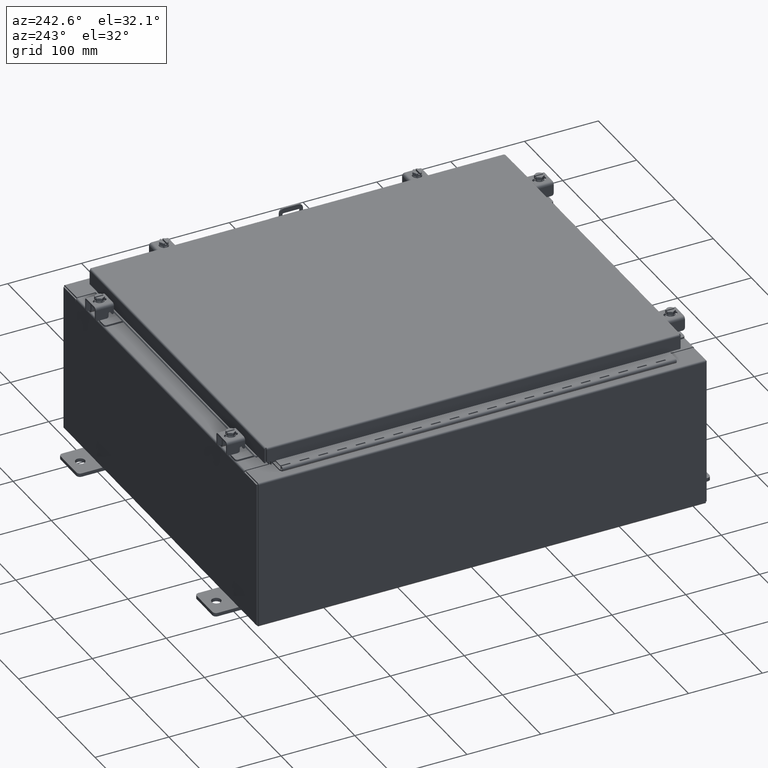
[diagram: clean part render]
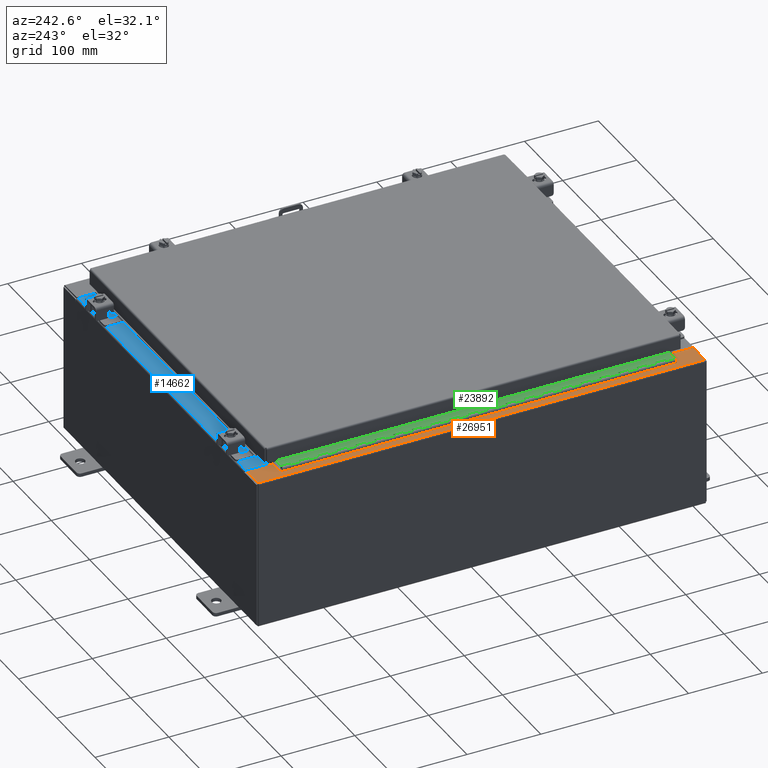
[diagram: same view with three faces highlighted in distinct colors, each labeled with its STEP entity id]
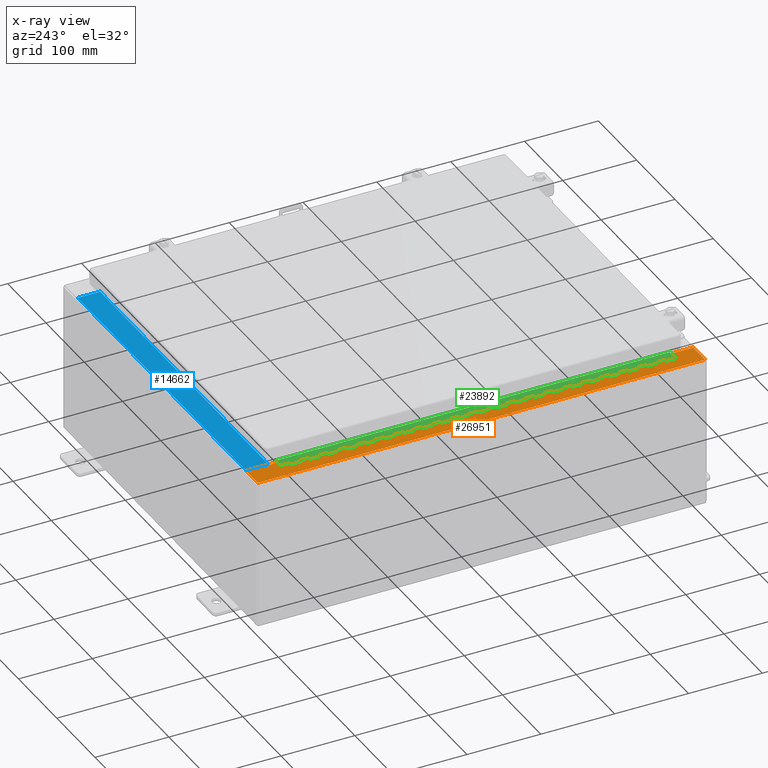
[diagram: x-ray of the same camera — body ghosted, the three highlighted faces saturated]
A machine part, auxiliary view with three faces highlighted in distinct colors.
The next image is the same camera in x-ray (body ghosted, the three faces saturated) — at least one of them is partly hidden behind the body in this view.
Their STEP definitions:

[orange] entity #26951 — the highlighted planar face has unit normal (0, 0, -1).
#151 = DIRECTION ( 'NONE',  ( -1.000000000000000000, -4.340572780399910900E-014, 0.0000000000000000000 ) ) ;
#219 = CARTESIAN_POINT ( 'NONE',  ( -8.712700000000030100, -10.59374999999999300, 7.925300000000008900 ) ) ;
#303 = EDGE_CURVE ( 'NONE', #32500, #23968, #8481, .T. ) ;
#952 = EDGE_CURVE ( 'NONE', #3105, #4582, #29604, .T. ) ;
#2425 = ORIENTED_EDGE ( 'NONE', *, *, #952, .F. ) ;
#2565 = CARTESIAN_POINT ( 'NONE',  ( -5.679009539018279500E-014, 0.0000000000000000000, 7.925300000000071100 ) ) ;
#2954 = VECTOR ( 'NONE', #151, 39.37007874015748100 ) ;
#3028 = ORIENTED_EDGE ( 'NONE', *, *, #5223, .T. ) ;
#3105 = VERTEX_POINT ( 'NONE', #27489 ) ;
#3360 = CARTESIAN_POINT ( 'NONE',  ( -8.712700000000030100, -10.59374999999999300, 7.925300000000008900 ) ) ;
#4303 = CARTESIAN_POINT ( 'NONE',  ( -8.712700000000030100, 10.59375000000000000, 7.925300000000008900 ) ) ;
#4396 = LINE ( 'NONE', #23399, #16999 ) ;
#4515 = CARTESIAN_POINT ( 'NONE',  ( -9.912300000000028500, 11.92530000000000000, 7.925300000000000000 ) ) ;
#4555 = CARTESIAN_POINT ( 'NONE',  ( -9.912300000000028500, -11.92529999999999600, 7.925300000000000000 ) ) ;
#4582 = VERTEX_POINT ( 'NONE', #9409 ) ;
#5153 = CARTESIAN_POINT ( 'NONE',  ( -8.750050000000030100, 10.59375000000000000, 7.925300000000008900 ) ) ;
#5223 = EDGE_CURVE ( 'NONE', #23455, #27421, #24686, .T. ) ;
#5695 = EDGE_CURVE ( 'NONE', #27644, #20898, #31306, .T. ) ;
#5756 = DIRECTION ( 'NONE',  ( -1.000000000000000000, 0.0000000000000000000, 0.0000000000000000000 ) ) ;
#5939 = EDGE_CURVE ( 'NONE', #4582, #15899, #30907, .T. ) ;
#6927 = LINE ( 'NONE', #7129, #19520 ) ;
#7129 = CARTESIAN_POINT ( 'NONE',  ( -8.750050000000030100, -10.63109999999999300, 7.925300000000008900 ) ) ;
#7682 = ORIENTED_EDGE ( 'NONE', *, *, #13631, .F. ) ;
#8481 = LINE ( 'NONE', #11727, #14400 ) ;
#8862 = LINE ( 'NONE', #17684, #21435 ) ;
#9409 = CARTESIAN_POINT ( 'NONE',  ( -8.750050000000030100, 10.63109999999999800, 7.925300000000008900 ) ) ;
#10283 = DIRECTION ( 'NONE',  ( -1.000000000000000000, 0.0000000000000000000, -7.132762385546378400E-015 ) ) ;
#11067 = VECTOR ( 'NONE', #12634, 39.37007874015748100 ) ;
#11358 = VECTOR ( 'NONE', #31641, 39.37007874015748100 ) ;
#11390 = VECTOR ( 'NONE', #22723, 39.37007874015748100 ) ;
#11727 = CARTESIAN_POINT ( 'NONE',  ( -5.679009539018279500E-014, 11.92530000000000000, 7.925300000000071100 ) ) ;
#11843 = CARTESIAN_POINT ( 'NONE',  ( -8.750050000000030100, 10.59375000000000000, 7.925300000000008900 ) ) ;
#12127 = VECTOR ( 'NONE', #5756, 39.37007874015748100 ) ;
#12634 = DIRECTION ( 'NONE',  ( 0.0000000000000000000, 1.000000000000000000, 0.0000000000000000000 ) ) ;
#12662 = DIRECTION ( 'NONE',  ( 7.132762385546378400E-015, 0.0000000000000000000, -1.000000000000000000 ) ) ;
#13631 = EDGE_CURVE ( 'NONE', #15899, #16061, #29800, .T. ) ;
#13700 = CARTESIAN_POINT ( 'NONE',  ( -8.750050000000030100, -10.59374999999999300, 7.925300000000008900 ) ) ;
#14014 = CARTESIAN_POINT ( 'NONE',  ( -8.750050000000030100, -10.61242499999999300, 7.925300000000008900 ) ) ;
#14400 = VECTOR ( 'NONE', #10283, 39.37007874015748100 ) ;
#14441 = DIRECTION ( 'NONE',  ( -7.132762385546378400E-015, -0.0000000000000000000, 1.000000000000000000 ) ) ;
#15563 = VERTEX_POINT ( 'NONE', #17667 ) ;
#15899 = VERTEX_POINT ( 'NONE', #11843 ) ;
#16061 = VERTEX_POINT ( 'NONE', #4303 ) ;
#16513 = DIRECTION ( 'NONE',  ( 1.000000000000000000, 0.0000000000000000000, 0.0000000000000000000 ) ) ;
#16722 = EDGE_LOOP ( 'NONE', ( #2425, #24261, #31211, #18901, #3028, #21713, #21182, #30889, #21476, #25572, #7682, #25193 ) ) ;
#16791 = CARTESIAN_POINT ( 'NONE',  ( -8.699700000000028400, 11.92530000000000000, 7.925300000000008900 ) ) ;
#16935 = VERTEX_POINT ( 'NONE', #20795 ) ;
#16999 = VECTOR ( 'NONE', #25892, 39.37007874015748100 ) ;
#17667 = CARTESIAN_POINT ( 'NONE',  ( -8.699700000000028400, -10.63109999999999300, 7.925300000000008900 ) ) ;
#17684 = CARTESIAN_POINT ( 'NONE',  ( -8.699700000000028400, 0.0000000000000000000, 7.925300000000008900 ) ) ;
#17731 = LINE ( 'NONE', #20201, #11067 ) ;
#17895 = VECTOR ( 'NONE', #29626, 39.37007874015748100 ) ;
#18850 = CIRCLE ( 'NONE', #26934, 0.01867499999999949400 ) ;
#18901 = ORIENTED_EDGE ( 'NONE', *, *, #24252, .F. ) ;
#19520 = VECTOR ( 'NONE', #29598, 39.37007874015748100 ) ;
#20201 = CARTESIAN_POINT ( 'NONE',  ( -8.699700000000028400, 0.0000000000000000000, 7.925300000000008900 ) ) ;
#20230 = DIRECTION ( 'NONE',  ( 0.0000000000000000000, 1.000000000000000000, 0.0000000000000000000 ) ) ;
#20795 = CARTESIAN_POINT ( 'NONE',  ( -8.750050000000030100, -10.63109999999999300, 7.925300000000008900 ) ) ;
#20898 = VERTEX_POINT ( 'NONE', #13700 ) ;
#21182 = ORIENTED_EDGE ( 'NONE', *, *, #21731, .F. ) ;
#21310 = AXIS2_PLACEMENT_3D ( 'NONE', #2565, #12662, #30176 ) ;
#21435 = VECTOR ( 'NONE', #20230, 39.37007874015748100 ) ;
#21476 = ORIENTED_EDGE ( 'NONE', *, *, #5695, .F. ) ;
#21713 = ORIENTED_EDGE ( 'NONE', *, *, #22397, .T. ) ;
#21731 = EDGE_CURVE ( 'NONE', #16935, #15563, #6927, .T. ) ;
#22266 = EDGE_CURVE ( 'NONE', #16061, #27644, #24544, .T. ) ;
#22397 = EDGE_CURVE ( 'NONE', #27421, #15563, #8862, .T. ) ;
#22723 = DIRECTION ( 'NONE',  ( 1.000000000000000000, 0.0000000000000000000, 0.0000000000000000000 ) ) ;
#23399 = CARTESIAN_POINT ( 'NONE',  ( -9.912300000000028500, 11.92530000000000000, 7.925300000000000000 ) ) ;
#23455 = VERTEX_POINT ( 'NONE', #4555 ) ;
#23968 = VERTEX_POINT ( 'NONE', #4515 ) ;
#24252 = EDGE_CURVE ( 'NONE', #23455, #23968, #4396, .T. ) ;
#24261 = ORIENTED_EDGE ( 'NONE', *, *, #24727, .T. ) ;
#24544 = LINE ( 'NONE', #29520, #17895 ) ;
#24686 = LINE ( 'NONE', #26614, #11358 ) ;
#24727 = EDGE_CURVE ( 'NONE', #3105, #32500, #17731, .T. ) ;
#24989 = AXIS2_PLACEMENT_3D ( 'NONE', #29413, #14441, #31934 ) ;
#25193 = ORIENTED_EDGE ( 'NONE', *, *, #5939, .F. ) ;
#25572 = ORIENTED_EDGE ( 'NONE', *, *, #22266, .F. ) ;
#25892 = DIRECTION ( 'NONE',  ( -0.0000000000000000000, 1.000000000000000000, -0.0000000000000000000 ) ) ;
#26614 = CARTESIAN_POINT ( 'NONE',  ( -3.552501257109376000E-014, -11.92529999999998000, 7.925300000000071100 ) ) ;
#26732 = EDGE_CURVE ( 'NONE', #20898, #16935, #18850, .T. ) ;
#26934 = AXIS2_PLACEMENT_3D ( 'NONE', #14014, #31489, #16513 ) ;
#26951 = ADVANCED_FACE ( 'NONE', ( #27664 ), #27642, .F. ) ;
#27421 = VERTEX_POINT ( 'NONE', #29587 ) ;
#27489 = CARTESIAN_POINT ( 'NONE',  ( -8.699700000000028400, 10.63110000000000200, 7.925300000000008900 ) ) ;
#27642 = PLANE ( 'NONE',  #21310 ) ;
#27644 = VERTEX_POINT ( 'NONE', #219 ) ;
#27664 = FACE_OUTER_BOUND ( 'NONE', #16722, .T. ) ;
#28869 = CARTESIAN_POINT ( 'NONE',  ( -8.699700000000028400, 10.63110000000000200, 7.925300000000008900 ) ) ;
#29413 = CARTESIAN_POINT ( 'NONE',  ( -8.750050000000030100, 10.61242500000000000, 7.925300000000008900 ) ) ;
#29520 = CARTESIAN_POINT ( 'NONE',  ( -8.712700000000030100, 10.59375000000000200, 7.925300000000008900 ) ) ;
#29587 = CARTESIAN_POINT ( 'NONE',  ( -8.699700000000028400, -11.92529999999999500, 7.925300000000008900 ) ) ;
#29598 = DIRECTION ( 'NONE',  ( 1.000000000000000000, 0.0000000000000000000, 0.0000000000000000000 ) ) ;
#29604 = LINE ( 'NONE', #28869, #2954 ) ;
#29626 = DIRECTION ( 'NONE',  ( -0.0000000000000000000, -1.000000000000000000, -0.0000000000000000000 ) ) ;
#29800 = LINE ( 'NONE', #5153, #11390 ) ;
#30176 = DIRECTION ( 'NONE',  ( -1.000000000000000000, 0.0000000000000000000, -7.132762385546378400E-015 ) ) ;
#30889 = ORIENTED_EDGE ( 'NONE', *, *, #26732, .F. ) ;
#30907 = CIRCLE ( 'NONE', #24989, 0.01867499999999949400 ) ;
#31211 = ORIENTED_EDGE ( 'NONE', *, *, #303, .T. ) ;
#31306 = LINE ( 'NONE', #3360, #12127 ) ;
#31489 = DIRECTION ( 'NONE',  ( -7.132762385546378400E-015, -0.0000000000000000000, 1.000000000000000000 ) ) ;
#31641 = DIRECTION ( 'NONE',  ( 1.000000000000000000, 1.783190596386595000E-015, 7.132762385546378400E-015 ) ) ;
#31934 = DIRECTION ( 'NONE',  ( 1.000000000000000000, 0.0000000000000000000, 0.0000000000000000000 ) ) ;
#32500 = VERTEX_POINT ( 'NONE', #16791 ) ;

[blue] entity #14662 — the highlighted planar face has unit normal (0, 0, 1).
#515 = VECTOR ( 'NONE', #23921, 39.37007874015748100 ) ;
#2494 = EDGE_LOOP ( 'NONE', ( #24715, #18837, #12673, #30378 ) ) ;
#3744 = CARTESIAN_POINT ( 'NONE',  ( -2.773851121247567100E-018, -0.08770000000000000000, 4.000000000000000900 ) ) ;
#4033 = DIRECTION ( 'NONE',  ( -0.0000000000000000000, -1.000000000000000000, 3.566381192773190000E-015 ) ) ;
#4478 = VECTOR ( 'NONE', #31447, 39.37007874015748100 ) ;
#5216 = EDGE_CURVE ( 'NONE', #12635, #29736, #30577, .T. ) ;
#5833 = EDGE_CURVE ( 'NONE', #10929, #13733, #15660, .T. ) ;
#6404 = CARTESIAN_POINT ( 'NONE',  ( -8.637200000000000000, -0.07469999999999973900, 4.000000000000000000 ) ) ;
#7404 = PLANE ( 'NONE',  #7574 ) ;
#7574 = AXIS2_PLACEMENT_3D ( 'NONE', #19929, #9932, #27463 ) ;
#8176 = VECTOR ( 'NONE', #8940, 39.37007874015748100 ) ;
#8940 = DIRECTION ( 'NONE',  ( -0.0000000000000000000, 1.000000000000000000, -3.566381192773190000E-015 ) ) ;
#9932 = DIRECTION ( 'NONE',  ( 0.0000000000000000000, 3.566381192773190000E-015, 1.000000000000000000 ) ) ;
#10929 = VERTEX_POINT ( 'NONE', #11518 ) ;
#11415 = CARTESIAN_POINT ( 'NONE',  ( 8.637200000000000000, -1.287299999999999900, 4.000000000000003600 ) ) ;
#11518 = CARTESIAN_POINT ( 'NONE',  ( -8.637200000000000000, -1.287299999999999200, 4.000000000000004400 ) ) ;
#12635 = VERTEX_POINT ( 'NONE', #24013 ) ;
#12673 = ORIENTED_EDGE ( 'NONE', *, *, #5216, .F. ) ;
#13733 = VERTEX_POINT ( 'NONE', #23053 ) ;
#13876 = LINE ( 'NONE', #3744, #515 ) ;
#14662 = ADVANCED_FACE ( 'NONE', ( #19631 ), #7404, .T. ) ;
#15660 = LINE ( 'NONE', #6404, #8176 ) ;
#17580 = EDGE_CURVE ( 'NONE', #29736, #10929, #31176, .T. ) ;
#18837 = ORIENTED_EDGE ( 'NONE', *, *, #17580, .F. ) ;
#19631 = FACE_OUTER_BOUND ( 'NONE', #2494, .T. ) ;
#19929 = CARTESIAN_POINT ( 'NONE',  ( 0.0000000000000000000, 1.425992975200418500E-014, 4.000000000000000000 ) ) ;
#21614 = CARTESIAN_POINT ( 'NONE',  ( 8.637200000000000000, -1.300299999999999800, 4.000000000000004400 ) ) ;
#23053 = CARTESIAN_POINT ( 'NONE',  ( -8.637200000000000000, -0.08770000000000000000, 4.000000000000000000 ) ) ;
#23907 = VECTOR ( 'NONE', #4033, 39.37007874015748100 ) ;
#23921 = DIRECTION ( 'NONE',  ( -1.000000000000000000, 3.162886113166609200E-017, -1.128005754888089100E-031 ) ) ;
#24013 = CARTESIAN_POINT ( 'NONE',  ( 8.637200000000000000, -0.08769999999999965300, 4.000000000000000000 ) ) ;
#24380 = EDGE_CURVE ( 'NONE', #12635, #13733, #13876, .T. ) ;
#24715 = ORIENTED_EDGE ( 'NONE', *, *, #5833, .F. ) ;
#27463 = DIRECTION ( 'NONE',  ( 0.0000000000000000000, -1.000000000000000000, 3.566381192773190000E-015 ) ) ;
#28684 = CARTESIAN_POINT ( 'NONE',  ( 8.637200000000000000, -1.287299999999999900, 4.000000000000004400 ) ) ;
#29736 = VERTEX_POINT ( 'NONE', #28684 ) ;
#30378 = ORIENTED_EDGE ( 'NONE', *, *, #24380, .T. ) ;
#30577 = LINE ( 'NONE', #21614, #23907 ) ;
#31176 = LINE ( 'NONE', #11415, #4478 ) ;
#31447 = DIRECTION ( 'NONE',  ( -1.000000000000000000, 0.0000000000000000000, 0.0000000000000000000 ) ) ;

[green] entity #23892 — the highlighted planar face has unit normal (-0, -0, 1).
#69 = VECTOR ( 'NONE', #7876, 39.37007874015748100 ) ;
#169 = ORIENTED_EDGE ( 'NONE', *, *, #20639, .T. ) ;
#181 = DIRECTION ( 'NONE',  ( 0.0000000000000000000, 0.0000000000000000000, 1.000000000000000000 ) ) ;
#226 = VECTOR ( 'NONE', #26861, 39.37007874015748100 ) ;
#251 = VECTOR ( 'NONE', #16293, 39.37007874015748100 ) ;
#315 = VECTOR ( 'NONE', #5632, 39.37007874015748100 ) ;
#355 = EDGE_CURVE ( 'NONE', #22859, #6333, #26907, .T. ) ;
#392 = VERTEX_POINT ( 'NONE', #16261 ) ;
#436 = CARTESIAN_POINT ( 'NONE',  ( -0.6869999999999973900, 0.8004999999999995500, -6.499999999999999100 ) ) ;
#545 = DIRECTION ( 'NONE',  ( 0.0000000000000000000, -0.0000000000000000000, -1.000000000000000000 ) ) ;
#564 = EDGE_CURVE ( 'NONE', #25168, #15018, #23781, .T. ) ;
#599 = LINE ( 'NONE', #32317, #13164 ) ;
#739 = LINE ( 'NONE', #14852, #20760 ) ;
#764 = LINE ( 'NONE', #23030, #26629 ) ;
#782 = ORIENTED_EDGE ( 'NONE', *, *, #30779, .F. ) ;
#877 = VECTOR ( 'NONE', #21947, 39.37007874015748100 ) ;
#917 = VECTOR ( 'NONE', #19225, 39.37007874015748100 ) ;
#975 = CARTESIAN_POINT ( 'NONE',  ( -0.6869999999999982800, 0.5504999999999997700, -2.999999999999999600 ) ) ;
#1086 = ORIENTED_EDGE ( 'NONE', *, *, #12259, .F. ) ;
#1101 = EDGE_CURVE ( 'NONE', #13690, #8346, #31545, .T. ) ;
#1108 = VERTEX_POINT ( 'NONE', #26136 ) ;
#1145 = VECTOR ( 'NONE', #18911, 39.37007874015748100 ) ;
#1158 = EDGE_CURVE ( 'NONE', #17357, #17340, #10786, .T. ) ;
#1181 = VERTEX_POINT ( 'NONE', #1686 ) ;
#1315 = EDGE_CURVE ( 'NONE', #28075, #11511, #5710, .T. ) ;
#1332 = ORIENTED_EDGE ( 'NONE', *, *, #7913, .F. ) ;
#1366 = DIRECTION ( 'NONE',  ( 0.0000000000000000000, -0.0000000000000000000, -1.000000000000000000 ) ) ;
#1394 = CARTESIAN_POINT ( 'NONE',  ( -0.6869999999999978300, 0.6754999999999996600, -21.00000000000000000 ) ) ;
#1409 = CARTESIAN_POINT ( 'NONE',  ( -0.6869999999999982800, 0.5504999999999997700, -13.50000000000000000 ) ) ;
#1443 = LINE ( 'NONE', #8735, #27325 ) ;
#1491 = EDGE_CURVE ( 'NONE', #9881, #12107, #13601, .T. ) ;
#1537 = VECTOR ( 'NONE', #5525, 39.37007874015748100 ) ;
#1578 = CARTESIAN_POINT ( 'NONE',  ( -0.6869999999999978300, 0.6754999999999996600, -7.000000000000000000 ) ) ;
#1635 = CARTESIAN_POINT ( 'NONE',  ( -0.6869999999999982800, 0.5504999999999997700, -19.50000000000000000 ) ) ;
#1686 = CARTESIAN_POINT ( 'NONE',  ( -0.6869999999999978300, 0.6754999999999996600, -16.50000000000000000 ) ) ;
#1854 = CARTESIAN_POINT ( 'NONE',  ( -0.6869999999999973900, 0.8004999999999995500, -11.00000000000000000 ) ) ;
#1872 = EDGE_CURVE ( 'NONE', #6333, #1108, #24131, .T. ) ;
#1929 = VERTEX_POINT ( 'NONE', #9799 ) ;
#2003 = VERTEX_POINT ( 'NONE', #28586 ) ;
#2087 = CARTESIAN_POINT ( 'NONE',  ( -0.6869999999999973900, 0.8004999999999995500, -8.500000000000000000 ) ) ;
#2114 = VERTEX_POINT ( 'NONE', #8218 ) ;
#2133 = DIRECTION ( 'NONE',  ( -3.389037039080723100E-015, -1.000000000000000000, 0.0000000000000000000 ) ) ;
#2136 = VECTOR ( 'NONE', #9400, 39.37007874015748100 ) ;
#2300 = DIRECTION ( 'NONE',  ( 0.0000000000000000000, -0.0000000000000000000, -1.000000000000000000 ) ) ;
#2357 = LINE ( 'NONE', #16737, #14930 ) ;
#2387 = VECTOR ( 'NONE', #31738, 39.37007874015748100 ) ;
#2439 = VERTEX_POINT ( 'NONE', #30281 ) ;
#2563 = DIRECTION ( 'NONE',  ( 3.389037039080723100E-015, 1.000000000000000000, -0.0000000000000000000 ) ) ;
#2574 = CARTESIAN_POINT ( 'NONE',  ( -0.6869999999999978300, 0.6754999999999996600, -13.50000000000000000 ) ) ;
#2617 = CARTESIAN_POINT ( 'NONE',  ( -0.6869999999999978300, 0.6754999999999996600, -21.00000000000000000 ) ) ;
#2629 = CARTESIAN_POINT ( 'NONE',  ( -0.6869999999999978300, 0.6754999999999996600, -21.00000000000000000 ) ) ;
#2705 = CARTESIAN_POINT ( 'NONE',  ( -0.6869999999999978300, 0.6754999999999996600, -21.00000000000000000 ) ) ;
#2920 = CARTESIAN_POINT ( 'NONE',  ( -0.6869999999999978300, 0.6754999999999996600, -2.999999999999999600 ) ) ;
#2930 = EDGE_CURVE ( 'NONE', #16255, #31554, #28364, .T. ) ;
#3001 = LINE ( 'NONE', #9812, #23026 ) ;
#3048 = CARTESIAN_POINT ( 'NONE',  ( -0.6869999999999978300, 0.6754999999999996600, -17.99999999999999600 ) ) ;
#3139 = LINE ( 'NONE', #20320, #14934 ) ;
#3145 = VERTEX_POINT ( 'NONE', #5123 ) ;
#3183 = ORIENTED_EDGE ( 'NONE', *, *, #31371, .F. ) ;
#3214 = VERTEX_POINT ( 'NONE', #15474 ) ;
#3349 = CARTESIAN_POINT ( 'NONE',  ( -0.6869999999999978300, 0.6754999999999996600, -21.00000000000000000 ) ) ;
#3481 = LINE ( 'NONE', #6105, #21946 ) ;
#3497 = VERTEX_POINT ( 'NONE', #11940 ) ;
#3499 = EDGE_CURVE ( 'NONE', #392, #11078, #31841, .T. ) ;
#3521 = DIRECTION ( 'NONE',  ( -3.389037039080723100E-015, -1.000000000000000000, 0.0000000000000000000 ) ) ;
#3624 = VERTEX_POINT ( 'NONE', #4981 ) ;
#3670 = VECTOR ( 'NONE', #12660, 39.37007874015748100 ) ;
#3699 = LINE ( 'NONE', #2629, #22951 ) ;
#3760 = VECTOR ( 'NONE', #1366, 39.37007874015748100 ) ;
#3803 = VERTEX_POINT ( 'NONE', #23626 ) ;
#3859 = ORIENTED_EDGE ( 'NONE', *, *, #30834, .F. ) ;
#3894 = DIRECTION ( 'NONE',  ( 0.0000000000000000000, -0.0000000000000000000, -1.000000000000000000 ) ) ;
#3974 = CARTESIAN_POINT ( 'NONE',  ( -0.6869999999999978300, 0.6754999999999996600, -21.00000000000000000 ) ) ;
#3978 = CARTESIAN_POINT ( 'NONE',  ( -0.6869999999999978300, 0.6754999999999996600, -6.499999999999999100 ) ) ;
#4002 = CARTESIAN_POINT ( 'NONE',  ( -0.6869999999999978300, 0.6754999999999996600, -5.000000000000000000 ) ) ;
#4038 = EDGE_CURVE ( 'NONE', #1181, #20363, #22047, .T. ) ;
#4099 = VECTOR ( 'NONE', #19976, 39.37007874015748100 ) ;
#4114 = CARTESIAN_POINT ( 'NONE',  ( -0.6869999999999973900, 0.8004999999999995500, -5.500000000000000000 ) ) ;
#4122 = VECTOR ( 'NONE', #29356, 39.37007874015748100 ) ;
#4140 = ORIENTED_EDGE ( 'NONE', *, *, #20479, .F. ) ;
#4162 = CARTESIAN_POINT ( 'NONE',  ( -0.6869999999999982800, 0.5504999999999997700, -2.500000000000000000 ) ) ;
#4434 = CARTESIAN_POINT ( 'NONE',  ( -0.6869999999999978300, 0.6754999999999996600, -12.49999999999999800 ) ) ;
#4437 = VERTEX_POINT ( 'NONE', #26302 ) ;
#4444 = CARTESIAN_POINT ( 'NONE',  ( -0.6869999999999973900, 0.8004999999999995500, -14.49999999999999800 ) ) ;
#4448 = EDGE_CURVE ( 'NONE', #27775, #23010, #30222, .T. ) ;
#4465 = CARTESIAN_POINT ( 'NONE',  ( -0.6869999999999982800, 0.5504999999999997700, -18.50000000000000000 ) ) ;
#4471 = ORIENTED_EDGE ( 'NONE', *, *, #5449, .F. ) ;
#4498 = DIRECTION ( 'NONE',  ( 0.0000000000000000000, 0.0000000000000000000, 1.000000000000000000 ) ) ;
#4522 = VERTEX_POINT ( 'NONE', #1635 ) ;
#4559 = CARTESIAN_POINT ( 'NONE',  ( -0.6869999999999982800, 0.5504999999999997700, -11.00000000000000000 ) ) ;
#4606 = CARTESIAN_POINT ( 'NONE',  ( -0.6869999999999973900, 0.8004999999999995500, -2.500000000000000000 ) ) ;
#4634 = VERTEX_POINT ( 'NONE', #4559 ) ;
#4781 = ORIENTED_EDGE ( 'NONE', *, *, #13714, .F. ) ;
#4833 = VERTEX_POINT ( 'NONE', #15353 ) ;
#4875 = EDGE_CURVE ( 'NONE', #8221, #3145, #26668, .T. ) ;
#4888 = CARTESIAN_POINT ( 'NONE',  ( -0.6869999999999978300, 0.6754999999999996600, -11.00000000000000000 ) ) ;
#4981 = CARTESIAN_POINT ( 'NONE',  ( -0.6869999999999978300, 0.6754999999999996600, -8.500000000000000000 ) ) ;
#5100 = VECTOR ( 'NONE', #15219, 39.37007874015748100 ) ;
#5123 = CARTESIAN_POINT ( 'NONE',  ( -0.6869999999999982800, 0.5504999999999997700, -7.000000000000000000 ) ) ;
#5205 = ORIENTED_EDGE ( 'NONE', *, *, #14566, .F. ) ;
#5259 = LINE ( 'NONE', #24216, #24486 ) ;
#5263 = LINE ( 'NONE', #14929, #31158 ) ;
#5376 = VERTEX_POINT ( 'NONE', #9724 ) ;
#5378 = VERTEX_POINT ( 'NONE', #27260 ) ;
#5446 = DIRECTION ( 'NONE',  ( 0.0000000000000000000, -0.0000000000000000000, -1.000000000000000000 ) ) ;
#5449 = EDGE_CURVE ( 'NONE', #20757, #15669, #5834, .T. ) ;
#5525 = DIRECTION ( 'NONE',  ( -3.389037039080723100E-015, -1.000000000000000000, 0.0000000000000000000 ) ) ;
#5580 = DIRECTION ( 'NONE',  ( -3.389037039080723100E-015, -1.000000000000000000, 0.0000000000000000000 ) ) ;
#5611 = CARTESIAN_POINT ( 'NONE',  ( -0.6869999999999973900, 0.8004999999999995500, -1.000000000000000000 ) ) ;
#5632 = DIRECTION ( 'NONE',  ( -3.389037039080723100E-015, -1.000000000000000000, 0.0000000000000000000 ) ) ;
#5671 = VECTOR ( 'NONE', #24694, 39.37007874015748100 ) ;
#5702 = LINE ( 'NONE', #1854, #4122 ) ;
#5710 = LINE ( 'NONE', #17078, #31590 ) ;
#5746 = CARTESIAN_POINT ( 'NONE',  ( -0.6869999999999978300, 0.6754999999999996600, -20.50000000000000400 ) ) ;
#5821 = VECTOR ( 'NONE', #15236, 39.37007874015748100 ) ;
#5834 = LINE ( 'NONE', #9839, #18404 ) ;
#5952 = VECTOR ( 'NONE', #19747, 39.37007874015748100 ) ;
#5975 = VECTOR ( 'NONE', #29611, 39.37007874015748100 ) ;
#5998 = ORIENTED_EDGE ( 'NONE', *, *, #30495, .F. ) ;
#5999 = CARTESIAN_POINT ( 'NONE',  ( -0.6869999999999982800, 0.5504999999999997700, -2.000000000000000000 ) ) ;
#6068 = LINE ( 'NONE', #11301, #12776 ) ;
#6105 = CARTESIAN_POINT ( 'NONE',  ( -0.6869999999999978300, 0.6754999999999996600, -21.00000000000000000 ) ) ;
#6141 = DIRECTION ( 'NONE',  ( -3.389037039080723100E-015, -1.000000000000000000, 0.0000000000000000000 ) ) ;
#6243 = CARTESIAN_POINT ( 'NONE',  ( -0.6869999999999973900, 0.8004999999999995500, -14.00000000000000000 ) ) ;
#6247 = CARTESIAN_POINT ( 'NONE',  ( -0.6869999999999973900, 0.8004999999999995500, -3.500000000000000000 ) ) ;
#6333 = VERTEX_POINT ( 'NONE', #8575 ) ;
#6345 = LINE ( 'NONE', #7781, #32236 ) ;
#6390 = CARTESIAN_POINT ( 'NONE',  ( -0.6869999999999978300, 0.6754999999999996600, -9.000000000000000000 ) ) ;
#6452 = VECTOR ( 'NONE', #21315, 39.37007874015748100 ) ;
#6503 = EDGE_CURVE ( 'NONE', #14509, #16255, #25991, .T. ) ;
#6656 = CARTESIAN_POINT ( 'NONE',  ( -0.6869999999999978300, 0.6754999999999996600, -21.00000000000000000 ) ) ;
#6677 = LINE ( 'NONE', #12589, #19273 ) ;
#6911 = EDGE_CURVE ( 'NONE', #29397, #25315, #14237, .T. ) ;
#6953 = EDGE_CURVE ( 'NONE', #3624, #17357, #13463, .T. ) ;
#6959 = EDGE_CURVE ( 'NONE', #22687, #16479, #12656, .T. ) ;
#6975 = DIRECTION ( 'NONE',  ( -3.389037039080723100E-015, -1.000000000000000000, 0.0000000000000000000 ) ) ;
#7039 = ORIENTED_EDGE ( 'NONE', *, *, #18258, .T. ) ;
#7181 = VECTOR ( 'NONE', #28085, 39.37007874015748100 ) ;
#7189 = ORIENTED_EDGE ( 'NONE', *, *, #11012, .F. ) ;
#7241 = VERTEX_POINT ( 'NONE', #23341 ) ;
#7348 = CARTESIAN_POINT ( 'NONE',  ( -0.6869999999999982800, 0.5504999999999997700, -9.000000000000000000 ) ) ;
#7394 = ORIENTED_EDGE ( 'NONE', *, *, #28800, .F. ) ;
#7403 = LINE ( 'NONE', #18465, #21572 ) ;
#7441 = VECTOR ( 'NONE', #12983, 39.37007874015748100 ) ;
#7527 = LINE ( 'NONE', #13339, #13470 ) ;
#7562 = CARTESIAN_POINT ( 'NONE',  ( -0.6869999999999973900, 0.8004999999999995500, -4.000000000000000000 ) ) ;
#7602 = ORIENTED_EDGE ( 'NONE', *, *, #1491, .F. ) ;
#7657 = CARTESIAN_POINT ( 'NONE',  ( -0.6869999999999973900, 0.8004999999999995500, -8.000000000000000000 ) ) ;
#7691 = CARTESIAN_POINT ( 'NONE',  ( -0.6869999999999978300, 0.6754999999999996600, -11.99999999999999800 ) ) ;
#7714 = VECTOR ( 'NONE', #19988, 39.37007874015748100 ) ;
#7727 = VERTEX_POINT ( 'NONE', #12576 ) ;
#7781 = CARTESIAN_POINT ( 'NONE',  ( -0.6869999999999978300, 0.6754999999999996600, -21.00000000000000000 ) ) ;
#7876 = DIRECTION ( 'NONE',  ( 3.389037039080723100E-015, 1.000000000000000000, -0.0000000000000000000 ) ) ;
#7894 = ORIENTED_EDGE ( 'NONE', *, *, #26591, .T. ) ;
#7906 = CARTESIAN_POINT ( 'NONE',  ( -0.6869999999999978300, 0.6754999999999996600, -21.00000000000000000 ) ) ;
#7913 = EDGE_CURVE ( 'NONE', #16337, #5376, #14953, .T. ) ;
#8169 = EDGE_CURVE ( 'NONE', #31783, #8221, #8630, .T. ) ;
#8218 = CARTESIAN_POINT ( 'NONE',  ( -0.6869999999999982800, 0.5504999999999997700, -12.49999999999999800 ) ) ;
#8219 = VERTEX_POINT ( 'NONE', #3048 ) ;
#8221 = VERTEX_POINT ( 'NONE', #10502 ) ;
#8236 = LINE ( 'NONE', #27969, #7441 ) ;
#8282 = VERTEX_POINT ( 'NONE', #25834 ) ;
#8346 = VERTEX_POINT ( 'NONE', #5999 ) ;
#8488 = CARTESIAN_POINT ( 'NONE',  ( -0.6869999999999978300, 0.6754999999999996600, -12.99999999999999800 ) ) ;
#8504 = ORIENTED_EDGE ( 'NONE', *, *, #14821, .F. ) ;
#8575 = CARTESIAN_POINT ( 'NONE',  ( -0.6869999999999982800, 0.5504999999999997700, -3.500000000000000000 ) ) ;
#8577 = VERTEX_POINT ( 'NONE', #31951 ) ;
#8630 = LINE ( 'NONE', #436, #16898 ) ;
#8634 = DIRECTION ( 'NONE',  ( 0.0000000000000000000, 0.0000000000000000000, 1.000000000000000000 ) ) ;
#8701 = LINE ( 'NONE', #23043, #27910 ) ;
#8735 = CARTESIAN_POINT ( 'NONE',  ( -0.6869999999999973900, 0.8004999999999995500, -16.50000000000000000 ) ) ;
#8820 = VECTOR ( 'NONE', #27066, 39.37007874015748100 ) ;
#8860 = CARTESIAN_POINT ( 'NONE',  ( -0.6869999999999973900, 0.8004999999999995500, -10.50000000000000000 ) ) ;
#8903 = EDGE_CURVE ( 'NONE', #31783, #23010, #7403, .T. ) ;
#9015 = VERTEX_POINT ( 'NONE', #16503 ) ;
#9041 = VECTOR ( 'NONE', #23205, 39.37007874015748100 ) ;
#9158 = VECTOR ( 'NONE', #14395, 39.37007874015748100 ) ;
#9228 = EDGE_CURVE ( 'NONE', #25006, #18632, #17991, .T. ) ;
#9318 = CARTESIAN_POINT ( 'NONE',  ( -0.6869999999999978300, 0.6754999999999996600, -21.00000000000000000 ) ) ;
#9375 = VERTEX_POINT ( 'NONE', #22020 ) ;
#9399 = EDGE_CURVE ( 'NONE', #26650, #26964, #19162, .T. ) ;
#9400 = DIRECTION ( 'NONE',  ( 0.0000000000000000000, -0.0000000000000000000, -1.000000000000000000 ) ) ;
#9407 = CARTESIAN_POINT ( 'NONE',  ( -0.6869999999999998300, 0.07549999999999991400, -21.00000000000000000 ) ) ;
#9485 = DIRECTION ( 'NONE',  ( 3.389037039080723100E-015, 1.000000000000000000, -0.0000000000000000000 ) ) ;
#9515 = ORIENTED_EDGE ( 'NONE', *, *, #23371, .T. ) ;
#9536 = CARTESIAN_POINT ( 'NONE',  ( -0.6869999999999982800, 0.5504999999999997700, -7.499999999999999100 ) ) ;
#9591 = ORIENTED_EDGE ( 'NONE', *, *, #17138, .T. ) ;
#9629 = ORIENTED_EDGE ( 'NONE', *, *, #14773, .T. ) ;
#9654 = EDGE_CURVE ( 'NONE', #28986, #27328, #26180, .T. ) ;
#9655 = CARTESIAN_POINT ( 'NONE',  ( -0.6869999999999973900, 0.8004999999999995500, -9.000000000000000000 ) ) ;
#9679 = CARTESIAN_POINT ( 'NONE',  ( -0.6869999999999978300, 0.6754999999999996600, -8.000000000000000000 ) ) ;
#9724 = CARTESIAN_POINT ( 'NONE',  ( -0.6869999999999982800, 0.5504999999999997700, -5.000000000000000000 ) ) ;
#9764 = LINE ( 'NONE', #17107, #22338 ) ;
#9799 = CARTESIAN_POINT ( 'NONE',  ( -0.6869999999999982800, 0.5504999999999997700, -9.500000000000000000 ) ) ;
#9812 = CARTESIAN_POINT ( 'NONE',  ( -0.6869999999999982800, 0.5504999999999997700, -20.50000000000000400 ) ) ;
#9824 = CARTESIAN_POINT ( 'NONE',  ( -0.6869999999999982800, 0.5504999999999997700, -20.00000000000000000 ) ) ;
#9839 = CARTESIAN_POINT ( 'NONE',  ( -0.6869999999999973900, 0.8004999999999995500, -14.99999999999999800 ) ) ;
#9855 = LINE ( 'NONE', #26969, #29064 ) ;
#9881 = VERTEX_POINT ( 'NONE', #16384 ) ;
#10055 = CARTESIAN_POINT ( 'NONE',  ( -0.6869999999999982800, 0.5504999999999997700, -3.500000000000000000 ) ) ;
#10117 = CARTESIAN_POINT ( 'NONE',  ( -0.6869999999999982800, 0.5504999999999997700, -20.50000000000000400 ) ) ;
#10127 = ORIENTED_EDGE ( 'NONE', *, *, #4038, .T. ) ;
#10138 = EDGE_CURVE ( 'NONE', #25168, #28075, #14425, .T. ) ;
#10320 = CARTESIAN_POINT ( 'NONE',  ( -0.6869999999999978300, 0.6754999999999996600, -6.000000000000000900 ) ) ;
#10473 = CARTESIAN_POINT ( 'NONE',  ( -0.6869999999999978300, 0.6754999999999996600, -17.00000000000000000 ) ) ;
#10502 = CARTESIAN_POINT ( 'NONE',  ( -0.6869999999999982800, 0.5504999999999997700, -6.499999999999999100 ) ) ;
#10546 = CARTESIAN_POINT ( 'NONE',  ( -0.6869999999999978300, 0.6754999999999996600, -21.00000000000000000 ) ) ;
#10560 = CARTESIAN_POINT ( 'NONE',  ( -0.6869999999999982800, 0.5504999999999997700, -21.00000000000000000 ) ) ;
#10569 = ORIENTED_EDGE ( 'NONE', *, *, #12396, .T. ) ;
#10582 = VECTOR ( 'NONE', #181, 39.37007874015748100 ) ;
#10618 = ORIENTED_EDGE ( 'NONE', *, *, #6959, .F. ) ;
#10663 = LINE ( 'NONE', #9318, #16557 ) ;
#10674 = DIRECTION ( 'NONE',  ( 3.389037039080723100E-015, 1.000000000000000000, -0.0000000000000000000 ) ) ;
#10690 = CARTESIAN_POINT ( 'NONE',  ( -0.6869999999999982800, 0.5504999999999997700, -4.500000000000000000 ) ) ;
#10732 = VERTEX_POINT ( 'NONE', #32189 ) ;
#10779 = CARTESIAN_POINT ( 'NONE',  ( -0.6869999999999978300, 0.6754999999999996600, -7.499999999999999100 ) ) ;
#10780 = EDGE_CURVE ( 'NONE', #31398, #29662, #31998, .T. ) ;
#10785 = CARTESIAN_POINT ( 'NONE',  ( -0.6869999999999978300, 0.6754999999999996600, -15.50000000000000000 ) ) ;
#10786 = LINE ( 'NONE', #29193, #3760 ) ;
#11012 = EDGE_CURVE ( 'NONE', #4634, #20553, #5702, .T. ) ;
#11078 = VERTEX_POINT ( 'NONE', #29463 ) ;
#11301 = CARTESIAN_POINT ( 'NONE',  ( -0.6869999999999973900, 0.8004999999999995500, -12.49999999999999800 ) ) ;
#11418 = LINE ( 'NONE', #8860, #24739 ) ;
#11511 = VERTEX_POINT ( 'NONE', #26487 ) ;
#11545 = CARTESIAN_POINT ( 'NONE',  ( -0.6869999999999978300, 0.6754999999999996600, -19.00000000000000000 ) ) ;
#11614 = VERTEX_POINT ( 'NONE', #19397 ) ;
#11719 = LINE ( 'NONE', #27701, #5821 ) ;
#11907 = CARTESIAN_POINT ( 'NONE',  ( -0.6869999999999978300, 0.6754999999999996600, -14.00000000000000000 ) ) ;
#11928 = DIRECTION ( 'NONE',  ( -3.389037039080723100E-015, -1.000000000000000000, 0.0000000000000000000 ) ) ;
#11940 = CARTESIAN_POINT ( 'NONE',  ( -0.6869999999999978300, 0.6754999999999996600, -1.499999999999999800 ) ) ;
#11950 = DIRECTION ( 'NONE',  ( 0.0000000000000000000, 0.0000000000000000000, 1.000000000000000000 ) ) ;
#11990 = VECTOR ( 'NONE', #27978, 39.37007874015748100 ) ;
#12030 = ORIENTED_EDGE ( 'NONE', *, *, #16308, .F. ) ;
#12086 = ORIENTED_EDGE ( 'NONE', *, *, #19226, .T. ) ;
#12107 = VERTEX_POINT ( 'NONE', #9679 ) ;
#12131 = VECTOR ( 'NONE', #29074, 39.37007874015748100 ) ;
#12148 = DIRECTION ( 'NONE',  ( 0.0000000000000000000, -0.0000000000000000000, -1.000000000000000000 ) ) ;
#12171 = ORIENTED_EDGE ( 'NONE', *, *, #26461, .T. ) ;
#12201 = CARTESIAN_POINT ( 'NONE',  ( -0.6869999999999978300, 0.6754999999999996600, -3.500000000000000000 ) ) ;
#12210 = CARTESIAN_POINT ( 'NONE',  ( -0.6869999999999982800, 0.5504999999999997700, -16.50000000000000000 ) ) ;
#12259 = EDGE_CURVE ( 'NONE', #21078, #8219, #29541, .T. ) ;
#12265 = EDGE_CURVE ( 'NONE', #1929, #5378, #16240, .T. ) ;
#12285 = ORIENTED_EDGE ( 'NONE', *, *, #27556, .T. ) ;
#12316 = EDGE_CURVE ( 'NONE', #2003, #27775, #14683, .T. ) ;
#12381 = ORIENTED_EDGE ( 'NONE', *, *, #23415, .F. ) ;
#12396 = EDGE_CURVE ( 'NONE', #19548, #15669, #27192, .T. ) ;
#12497 = CARTESIAN_POINT ( 'NONE',  ( -0.6869999999999982800, 0.5504999999999997700, -11.50000000000000000 ) ) ;
#12508 = DIRECTION ( 'NONE',  ( 0.0000000000000000000, 0.0000000000000000000, 1.000000000000000000 ) ) ;
#12516 = ORIENTED_EDGE ( 'NONE', *, *, #8169, .F. ) ;
#12548 = CARTESIAN_POINT ( 'NONE',  ( -0.6869999999999973900, 0.8004999999999995500, -17.99999999999999600 ) ) ;
#12576 = CARTESIAN_POINT ( 'NONE',  ( -0.6869999999999998300, 0.07549999999999991400, 0.0000000000000000000 ) ) ;
#12589 = CARTESIAN_POINT ( 'NONE',  ( -0.6869999999999978300, 0.6754999999999996600, -21.00000000000000000 ) ) ;
#12656 = LINE ( 'NONE', #4465, #5952 ) ;
#12660 = DIRECTION ( 'NONE',  ( 0.0000000000000000000, -0.0000000000000000000, -1.000000000000000000 ) ) ;
#12681 = LINE ( 'NONE', #32024, #5975 ) ;
#12776 = VECTOR ( 'NONE', #6141, 39.37007874015748100 ) ;
#12789 = LINE ( 'NONE', #7906, #11990 ) ;
#12877 = DIRECTION ( 'NONE',  ( 0.0000000000000000000, -0.0000000000000000000, -1.000000000000000000 ) ) ;
#12882 = DIRECTION ( 'NONE',  ( 3.389037039080723100E-015, 1.000000000000000000, -0.0000000000000000000 ) ) ;
#12902 = ORIENTED_EDGE ( 'NONE', *, *, #15195, .T. ) ;
#12930 = LINE ( 'NONE', #3974, #12131 ) ;
#12983 = DIRECTION ( 'NONE',  ( 3.389037039080723100E-015, 1.000000000000000000, -0.0000000000000000000 ) ) ;
#13079 = LINE ( 'NONE', #4606, #31453 ) ;
#13164 = VECTOR ( 'NONE', #2300, 39.37007874015748100 ) ;
#13178 = LINE ( 'NONE', #6243, #6452 ) ;
#13269 = VECTOR ( 'NONE', #31254, 39.37007874015748100 ) ;
#13300 = ORIENTED_EDGE ( 'NONE', *, *, #20432, .F. ) ;
#13319 = CARTESIAN_POINT ( 'NONE',  ( -0.6869999999999978300, 0.6754999999999996600, -14.99999999999999800 ) ) ;
#13339 = CARTESIAN_POINT ( 'NONE',  ( -0.6869999999999978300, 0.6754999999999996600, -21.00000000000000000 ) ) ;
#13386 = ORIENTED_EDGE ( 'NONE', *, *, #25392, .T. ) ;
#13448 = DIRECTION ( 'NONE',  ( 0.0000000000000000000, 0.0000000000000000000, 1.000000000000000000 ) ) ;
#13463 = LINE ( 'NONE', #2087, #25952 ) ;
#13470 = VECTOR ( 'NONE', #13448, 39.37007874015748100 ) ;
#13601 = LINE ( 'NONE', #7657, #226 ) ;
#13681 = EDGE_CURVE ( 'NONE', #5378, #10732, #3139, .T. ) ;
#13690 = VERTEX_POINT ( 'NONE', #15387 ) ;
#13714 = EDGE_CURVE ( 'NONE', #8346, #9015, #8236, .T. ) ;
#13747 = LINE ( 'NONE', #9655, #27824 ) ;
#13773 = CARTESIAN_POINT ( 'NONE',  ( -0.6869999999999973900, 0.8004999999999995500, -12.99999999999999800 ) ) ;
#13852 = CARTESIAN_POINT ( 'NONE',  ( -0.6869999999999973900, 0.8004999999999995500, -6.000000000000000900 ) ) ;
#13922 = EDGE_CURVE ( 'NONE', #19548, #4437, #28611, .T. ) ;
#13935 = DIRECTION ( 'NONE',  ( 0.0000000000000000000, 0.0000000000000000000, 1.000000000000000000 ) ) ;
#14049 = ORIENTED_EDGE ( 'NONE', *, *, #15350, .F. ) ;
#14105 = VECTOR ( 'NONE', #29716, 39.37007874015748100 ) ;
#14185 = CARTESIAN_POINT ( 'NONE',  ( -0.6869999999999982800, 0.5504999999999997700, -17.50000000000000000 ) ) ;
#14195 = EDGE_CURVE ( 'NONE', #26486, #14868, #764, .T. ) ;
#14211 = CARTESIAN_POINT ( 'NONE',  ( -0.6869999999999978300, 0.6754999999999996600, -21.00000000000000000 ) ) ;
#14235 = CARTESIAN_POINT ( 'NONE',  ( -0.6870000000000022800, -0.6245000000000003900, -21.00000000000000000 ) ) ;
#14237 = LINE ( 'NONE', #19541, #877 ) ;
#14254 = ORIENTED_EDGE ( 'NONE', *, *, #6953, .F. ) ;
#14300 = DIRECTION ( 'NONE',  ( 0.0000000000000000000, 0.0000000000000000000, 1.000000000000000000 ) ) ;
#14342 = DIRECTION ( 'NONE',  ( 3.369016658928398200E-015, 1.000000000000000000, 0.0000000000000000000 ) ) ;
#14395 = DIRECTION ( 'NONE',  ( 3.389037039080723100E-015, 1.000000000000000000, -0.0000000000000000000 ) ) ;
#14423 = ORIENTED_EDGE ( 'NONE', *, *, #1872, .F. ) ;
#14425 = LINE ( 'NONE', #17463, #7714 ) ;
#14502 = ORIENTED_EDGE ( 'NONE', *, *, #14195, .F. ) ;
#14509 = VERTEX_POINT ( 'NONE', #29330 ) ;
#14524 = EDGE_CURVE ( 'NONE', #4833, #16337, #23544, .T. ) ;
#14566 = EDGE_CURVE ( 'NONE', #22573, #20328, #17646, .T. ) ;
#14683 = LINE ( 'NONE', #27861, #22140 ) ;
#14745 = VECTOR ( 'NONE', #3521, 39.37007874015748100 ) ;
#14763 = CARTESIAN_POINT ( 'NONE',  ( -0.6869999999999973900, 0.8004999999999995500, -18.50000000000000000 ) ) ;
#14773 = EDGE_CURVE ( 'NONE', #26874, #21574, #23911, .T. ) ;
#14821 = EDGE_CURVE ( 'NONE', #19139, #16022, #20799, .T. ) ;
#14852 = CARTESIAN_POINT ( 'NONE',  ( -0.6869999999999978300, 0.6754999999999996600, -21.00000000000000000 ) ) ;
#14868 = VERTEX_POINT ( 'NONE', #15652 ) ;
#14929 = CARTESIAN_POINT ( 'NONE',  ( -0.6869999999999978300, 0.6754999999999996600, -21.00000000000000000 ) ) ;
#14930 = VECTOR ( 'NONE', #31601, 39.37007874015748100 ) ;
#14934 = VECTOR ( 'NONE', #15282, 39.37007874015748100 ) ;
#14953 = LINE ( 'NONE', #10690, #9041 ) ;
#15018 = VERTEX_POINT ( 'NONE', #8488 ) ;
#15078 = ORIENTED_EDGE ( 'NONE', *, *, #15108, .F. ) ;
#15108 = EDGE_CURVE ( 'NONE', #3497, #13690, #21177, .T. ) ;
#15136 = VERTEX_POINT ( 'NONE', #6390 ) ;
#15195 = EDGE_CURVE ( 'NONE', #22859, #31554, #12930, .T. ) ;
#15219 = DIRECTION ( 'NONE',  ( 0.0000000000000000000, 0.0000000000000000000, 1.000000000000000000 ) ) ;
#15236 = DIRECTION ( 'NONE',  ( 3.369016658928398200E-015, 1.000000000000000000, 0.0000000000000000000 ) ) ;
#15282 = DIRECTION ( 'NONE',  ( 3.389037039080723100E-015, 1.000000000000000000, -0.0000000000000000000 ) ) ;
#15338 = LINE ( 'NONE', #3349, #21230 ) ;
#15350 = EDGE_CURVE ( 'NONE', #11078, #20757, #27388, .T. ) ;
#15353 = CARTESIAN_POINT ( 'NONE',  ( -0.6869999999999978300, 0.6754999999999996600, -4.500000000000000000 ) ) ;
#15376 = CARTESIAN_POINT ( 'NONE',  ( -0.6869999999999982800, 0.5504999999999997700, -16.00000000000000000 ) ) ;
#15387 = CARTESIAN_POINT ( 'NONE',  ( -0.6869999999999982800, 0.5504999999999997700, -1.499999999999999800 ) ) ;
#15391 = EDGE_CURVE ( 'NONE', #3497, #16832, #739, .T. ) ;
#15408 = CARTESIAN_POINT ( 'NONE',  ( -0.6869999999999973900, 0.8004999999999995500, -17.00000000000000000 ) ) ;
#15426 = CARTESIAN_POINT ( 'NONE',  ( -0.6869999999999978300, 0.6754999999999996600, -1.000000000000000000 ) ) ;
#15474 = CARTESIAN_POINT ( 'NONE',  ( -0.6869999999999978300, 0.6754999999999996600, -2.500000000000000000 ) ) ;
#15518 = LINE ( 'NONE', #9536, #8820 ) ;
#15519 = CARTESIAN_POINT ( 'NONE',  ( -0.6869999999999978300, 0.6754999999999996600, -17.50000000000000000 ) ) ;
#15531 = LINE ( 'NONE', #23488, #14745 ) ;
#15549 = VECTOR ( 'NONE', #29178, 39.37007874015748100 ) ;
#15641 = CARTESIAN_POINT ( 'NONE',  ( -0.6869999999999973900, 0.8004999999999995500, -17.50000000000000000 ) ) ;
#15652 = CARTESIAN_POINT ( 'NONE',  ( -0.6869999999999982800, 0.5504999999999997700, -1.000000000000000000 ) ) ;
#15669 = VERTEX_POINT ( 'NONE', #13319 ) ;
#15745 = LINE ( 'NONE', #4114, #2387 ) ;
#16003 = CARTESIAN_POINT ( 'NONE',  ( -0.6869999999999982800, 0.5504999999999997700, -7.499999999999999100 ) ) ;
#16022 = VERTEX_POINT ( 'NONE', #12497 ) ;
#16093 = ORIENTED_EDGE ( 'NONE', *, *, #17543, .F. ) ;
#16240 = LINE ( 'NONE', #27640, #3670 ) ;
#16255 = VERTEX_POINT ( 'NONE', #975 ) ;
#16261 = CARTESIAN_POINT ( 'NONE',  ( -0.6869999999999978300, 0.6754999999999996600, -14.49999999999999800 ) ) ;
#16293 = DIRECTION ( 'NONE',  ( -3.389037039080723100E-015, -1.000000000000000000, 0.0000000000000000000 ) ) ;
#16308 = EDGE_CURVE ( 'NONE', #1181, #22033, #1443, .T. ) ;
#16337 = VERTEX_POINT ( 'NONE', #18828 ) ;
#16351 = EDGE_CURVE ( 'NONE', #4437, #23025, #25755, .T. ) ;
#16354 = DIRECTION ( 'NONE',  ( 3.389037039080723100E-015, 1.000000000000000000, -0.0000000000000000000 ) ) ;
#16384 = CARTESIAN_POINT ( 'NONE',  ( -0.6869999999999982800, 0.5504999999999997700, -8.000000000000000000 ) ) ;
#16392 = VERTEX_POINT ( 'NONE', #4002 ) ;
#16396 = CARTESIAN_POINT ( 'NONE',  ( -0.6869999999999973900, 0.8004999999999995500, -1.499999999999999800 ) ) ;
#16425 = LINE ( 'NONE', #17090, #28948 ) ;
#16479 = VERTEX_POINT ( 'NONE', #26586 ) ;
#16503 = CARTESIAN_POINT ( 'NONE',  ( -0.6869999999999978300, 0.6754999999999996600, -2.000000000000000000 ) ) ;
#16557 = VECTOR ( 'NONE', #14300, 39.37007874015748100 ) ;
#16625 = ORIENTED_EDGE ( 'NONE', *, *, #23360, .F. ) ;
#16677 = EDGE_CURVE ( 'NONE', #25219, #25315, #3001, .T. ) ;
#16737 = CARTESIAN_POINT ( 'NONE',  ( -0.6869999999999973900, 0.8004999999999995500, -19.00000000000000000 ) ) ;
#16832 = VERTEX_POINT ( 'NONE', #15426 ) ;
#16885 = VECTOR ( 'NONE', #31844, 39.37007874015748100 ) ;
#16898 = VECTOR ( 'NONE', #17971, 39.37007874015748100 ) ;
#16910 = VECTOR ( 'NONE', #16354, 39.37007874015748100 ) ;
#16969 = CARTESIAN_POINT ( 'NONE',  ( -0.6869999999999973900, 0.8004999999999995500, -11.99999999999999800 ) ) ;
#17009 = ORIENTED_EDGE ( 'NONE', *, *, #14524, .F. ) ;
#17059 = LINE ( 'NONE', #6656, #29572 ) ;
#17078 = CARTESIAN_POINT ( 'NONE',  ( -0.6869999999999982800, 0.5504999999999997700, -13.50000000000000000 ) ) ;
#17090 = CARTESIAN_POINT ( 'NONE',  ( -0.6869999999999982800, 0.5504999999999997700, -19.50000000000000000 ) ) ;
#17107 = CARTESIAN_POINT ( 'NONE',  ( -0.6869999999999973900, 0.8004999999999995500, -5.000000000000000000 ) ) ;
#17138 = EDGE_CURVE ( 'NONE', #3803, #16392, #29623, .T. ) ;
#17205 = VECTOR ( 'NONE', #12882, 39.37007874015748100 ) ;
#17317 = ORIENTED_EDGE ( 'NONE', *, *, #26413, .T. ) ;
#17333 = CARTESIAN_POINT ( 'NONE',  ( -0.6869999999999973900, 0.8004999999999995500, -19.50000000000000000 ) ) ;
#17340 = VERTEX_POINT ( 'NONE', #7348 ) ;
#17357 = VERTEX_POINT ( 'NONE', #22402 ) ;
#17463 = CARTESIAN_POINT ( 'NONE',  ( -0.6869999999999973900, 0.8004999999999995500, -13.50000000000000000 ) ) ;
#17543 = EDGE_CURVE ( 'NONE', #29975, #2114, #6068, .T. ) ;
#17567 = ORIENTED_EDGE ( 'NONE', *, *, #10138, .F. ) ;
#17626 = DIRECTION ( 'NONE',  ( 0.0000000000000000000, 0.0000000000000000000, 1.000000000000000000 ) ) ;
#17646 = LINE ( 'NONE', #19507, #18440 ) ;
#17672 = EDGE_CURVE ( 'NONE', #20328, #9881, #15518, .T. ) ;
#17732 = EDGE_CURVE ( 'NONE', #2114, #8282, #599, .T. ) ;
#17760 = CARTESIAN_POINT ( 'NONE',  ( -0.6869999999999982800, 0.5504999999999997700, -6.000000000000000900 ) ) ;
#17773 = VERTEX_POINT ( 'NONE', #22378 ) ;
#17893 = ORIENTED_EDGE ( 'NONE', *, *, #1101, .F. ) ;
#17896 = DIRECTION ( 'NONE',  ( 0.0000000000000000000, 0.0000000000000000000, 1.000000000000000000 ) ) ;
#17971 = DIRECTION ( 'NONE',  ( -3.389037039080723100E-015, -1.000000000000000000, 0.0000000000000000000 ) ) ;
#17991 = LINE ( 'NONE', #15408, #17205 ) ;
#17995 = ORIENTED_EDGE ( 'NONE', *, *, #1158, .F. ) ;
#18072 = ORIENTED_EDGE ( 'NONE', *, *, #1315, .F. ) ;
#18258 = EDGE_CURVE ( 'NONE', #22573, #30491, #20590, .T. ) ;
#18272 = VECTOR ( 'NONE', #10674, 39.37007874015748100 ) ;
#18368 = DIRECTION ( 'NONE',  ( 0.0000000000000000000, 0.0000000000000000000, 1.000000000000000000 ) ) ;
#18404 = VECTOR ( 'NONE', #19846, 39.37007874015748100 ) ;
#18414 = DIRECTION ( 'NONE',  ( 0.0000000000000000000, -0.0000000000000000000, -1.000000000000000000 ) ) ;
#18440 = VECTOR ( 'NONE', #11928, 39.37007874015748100 ) ;
#18460 = LINE ( 'NONE', #2705, #5100 ) ;
#18465 = CARTESIAN_POINT ( 'NONE',  ( -0.6869999999999978300, 0.6754999999999996600, -21.00000000000000000 ) ) ;
#18625 = ORIENTED_EDGE ( 'NONE', *, *, #16677, .F. ) ;
#18632 = VERTEX_POINT ( 'NONE', #10473 ) ;
#18749 = ORIENTED_EDGE ( 'NONE', *, *, #27037, .T. ) ;
#18815 = VECTOR ( 'NONE', #19873, 39.37007874015748100 ) ;
#18828 = CARTESIAN_POINT ( 'NONE',  ( -0.6869999999999982800, 0.5504999999999997700, -4.500000000000000000 ) ) ;
#18911 = DIRECTION ( 'NONE',  ( -3.389037039080723100E-015, -1.000000000000000000, 0.0000000000000000000 ) ) ;
#18946 = CARTESIAN_POINT ( 'NONE',  ( -0.6869999999999982800, 0.5504999999999997700, -15.50000000000000000 ) ) ;
#19011 = EDGE_CURVE ( 'NONE', #3145, #30491, #12681, .T. ) ;
#19020 = ORIENTED_EDGE ( 'NONE', *, *, #9654, .F. ) ;
#19052 = EDGE_CURVE ( 'NONE', #22033, #25006, #25194, .T. ) ;
#19139 = VERTEX_POINT ( 'NONE', #27524 ) ;
#19162 = LINE ( 'NONE', #16969, #31672 ) ;
#19195 = VECTOR ( 'NONE', #17626, 39.37007874015748100 ) ;
#19225 = DIRECTION ( 'NONE',  ( 0.0000000000000000000, -0.0000000000000000000, -1.000000000000000000 ) ) ;
#19226 = EDGE_CURVE ( 'NONE', #11614, #10732, #6345, .T. ) ;
#19273 = VECTOR ( 'NONE', #27577, 39.37007874015748100 ) ;
#19397 = CARTESIAN_POINT ( 'NONE',  ( -0.6869999999999978300, 0.6754999999999996600, -10.50000000000000000 ) ) ;
#19507 = CARTESIAN_POINT ( 'NONE',  ( -0.6869999999999973900, 0.8004999999999995500, -7.499999999999999100 ) ) ;
#19541 = CARTESIAN_POINT ( 'NONE',  ( -0.6870000000000022800, -0.6245000000000003900, -21.00000000000000000 ) ) ;
#19548 = VERTEX_POINT ( 'NONE', #10785 ) ;
#19747 = DIRECTION ( 'NONE',  ( 0.0000000000000000000, -0.0000000000000000000, -1.000000000000000000 ) ) ;
#19780 = ORIENTED_EDGE ( 'NONE', *, *, #2930, .F. ) ;
#19826 = EDGE_CURVE ( 'NONE', #7241, #1929, #9855, .T. ) ;
#19846 = DIRECTION ( 'NONE',  ( 3.389037039080723100E-015, 1.000000000000000000, -0.0000000000000000000 ) ) ;
#19873 = DIRECTION ( 'NONE',  ( -3.389037039080723100E-015, -1.000000000000000000, 0.0000000000000000000 ) ) ;
#19921 = ORIENTED_EDGE ( 'NONE', *, *, #19011, .F. ) ;
#19976 = DIRECTION ( 'NONE',  ( 0.0000000000000000000, -0.0000000000000000000, -1.000000000000000000 ) ) ;
#19988 = DIRECTION ( 'NONE',  ( -3.389037039080723100E-015, -1.000000000000000000, 0.0000000000000000000 ) ) ;
#20320 = CARTESIAN_POINT ( 'NONE',  ( -0.6869999999999973900, 0.8004999999999995500, -10.00000000000000000 ) ) ;
#20328 = VERTEX_POINT ( 'NONE', #16003 ) ;
#20363 = VERTEX_POINT ( 'NONE', #29251 ) ;
#20432 = EDGE_CURVE ( 'NONE', #29397, #7727, #29751, .T. ) ;
#20479 = EDGE_CURVE ( 'NONE', #5376, #16392, #9764, .T. ) ;
#20481 = ORIENTED_EDGE ( 'NONE', *, *, #16351, .F. ) ;
#20553 = VERTEX_POINT ( 'NONE', #4888 ) ;
#20590 = LINE ( 'NONE', #1394, #26432 ) ;
#20598 = CARTESIAN_POINT ( 'NONE',  ( -0.6869999999999973900, 0.8004999999999995500, -11.50000000000000000 ) ) ;
#20621 = CARTESIAN_POINT ( 'NONE',  ( -0.6869999999999982800, 0.5504999999999997700, -14.99999999999999800 ) ) ;
#20639 = EDGE_CURVE ( 'NONE', #392, #23922, #28199, .T. ) ;
#20655 = EDGE_CURVE ( 'NONE', #7727, #17773, #11719, .T. ) ;
#20715 = LINE ( 'NONE', #13773, #13269 ) ;
#20757 = VERTEX_POINT ( 'NONE', #20621 ) ;
#20760 = VECTOR ( 'NONE', #24801, 39.37007874015748100 ) ;
#20797 = ORIENTED_EDGE ( 'NONE', *, *, #22950, .F. ) ;
#20799 = LINE ( 'NONE', #20598, #1537 ) ;
#20847 = CARTESIAN_POINT ( 'NONE',  ( -0.6869999999999978300, 0.6754999999999996600, -20.00000000000000000 ) ) ;
#20889 = LINE ( 'NONE', #27943, #69 ) ;
#21078 = VERTEX_POINT ( 'NONE', #24501 ) ;
#21177 = LINE ( 'NONE', #16396, #1145 ) ;
#21230 = VECTOR ( 'NONE', #18368, 39.37007874015748100 ) ;
#21236 = ORIENTED_EDGE ( 'NONE', *, *, #4448, .F. ) ;
#21261 = VECTOR ( 'NONE', #4498, 39.37007874015748100 ) ;
#21315 = DIRECTION ( 'NONE',  ( 3.389037039080723100E-015, 1.000000000000000000, -0.0000000000000000000 ) ) ;
#21332 = ORIENTED_EDGE ( 'NONE', *, *, #27698, .F. ) ;
#21377 = LINE ( 'NONE', #23464, #27221 ) ;
#21472 = ORIENTED_EDGE ( 'NONE', *, *, #27165, .F. ) ;
#21497 = EDGE_CURVE ( 'NONE', #8282, #15018, #20715, .T. ) ;
#21548 = CARTESIAN_POINT ( 'NONE',  ( -0.6869999999999978300, 0.6754999999999996600, -0.5000000000000000000 ) ) ;
#21555 = VERTEX_POINT ( 'NONE', #21548 ) ;
#21572 = VECTOR ( 'NONE', #30947, 39.37007874015748100 ) ;
#21574 = VERTEX_POINT ( 'NONE', #11545 ) ;
#21734 = ORIENTED_EDGE ( 'NONE', *, *, #17672, .F. ) ;
#21808 = CARTESIAN_POINT ( 'NONE',  ( -0.6869999999999973900, 0.8004999999999995500, -4.500000000000000000 ) ) ;
#21946 = VECTOR ( 'NONE', #8634, 39.37007874015748100 ) ;
#21947 = DIRECTION ( 'NONE',  ( 3.369016658928398200E-015, 1.000000000000000000, 0.0000000000000000000 ) ) ;
#21994 = CARTESIAN_POINT ( 'NONE',  ( -0.6869999999999978300, 0.6754999999999996600, -21.00000000000000000 ) ) ;
#22020 = CARTESIAN_POINT ( 'NONE',  ( -0.6869999999999978300, 0.6754999999999996600, -18.50000000000000000 ) ) ;
#22033 = VERTEX_POINT ( 'NONE', #28485 ) ;
#22047 = LINE ( 'NONE', #22100, #21261 ) ;
#22100 = CARTESIAN_POINT ( 'NONE',  ( -0.6869999999999978300, 0.6754999999999996600, -21.00000000000000000 ) ) ;
#22140 = VECTOR ( 'NONE', #12877, 39.37007874015748100 ) ;
#22195 = VECTOR ( 'NONE', #25104, 39.37007874015748100 ) ;
#22252 = ORIENTED_EDGE ( 'NONE', *, *, #31156, .T. ) ;
#22338 = VECTOR ( 'NONE', #29569, 39.37007874015748100 ) ;
#22378 = CARTESIAN_POINT ( 'NONE',  ( -0.6869999999999978300, 0.6754999999999996600, 0.0000000000000000000 ) ) ;
#22393 = ORIENTED_EDGE ( 'NONE', *, *, #6503, .F. ) ;
#22402 = CARTESIAN_POINT ( 'NONE',  ( -0.6869999999999982800, 0.5504999999999997700, -8.500000000000000000 ) ) ;
#22505 = ORIENTED_EDGE ( 'NONE', *, *, #24831, .F. ) ;
#22560 = EDGE_CURVE ( 'NONE', #14868, #16832, #31578, .T. ) ;
#22573 = VERTEX_POINT ( 'NONE', #10779 ) ;
#22687 = VERTEX_POINT ( 'NONE', #24253 ) ;
#22859 = VERTEX_POINT ( 'NONE', #12201 ) ;
#22893 = VECTOR ( 'NONE', #32261, 39.37007874015748100 ) ;
#22915 = VECTOR ( 'NONE', #2563, 39.37007874015748100 ) ;
#22950 = EDGE_CURVE ( 'NONE', #1108, #8577, #28816, .T. ) ;
#22951 = VECTOR ( 'NONE', #30130, 39.37007874015748100 ) ;
#23010 = VERTEX_POINT ( 'NONE', #10320 ) ;
#23025 = VERTEX_POINT ( 'NONE', #15376 ) ;
#23026 = VECTOR ( 'NONE', #27334, 39.37007874015748100 ) ;
#23030 = CARTESIAN_POINT ( 'NONE',  ( -0.6869999999999982800, 0.5504999999999997700, -0.5000000000000000000 ) ) ;
#23043 = CARTESIAN_POINT ( 'NONE',  ( -0.6869999999999973900, 0.8004999999999995500, -20.50000000000000400 ) ) ;
#23130 = VECTOR ( 'NONE', #11950, 39.37007874015748100 ) ;
#23205 = DIRECTION ( 'NONE',  ( 0.0000000000000000000, -0.0000000000000000000, -1.000000000000000000 ) ) ;
#23341 = CARTESIAN_POINT ( 'NONE',  ( -0.6869999999999978300, 0.6754999999999996600, -9.500000000000000000 ) ) ;
#23360 = EDGE_CURVE ( 'NONE', #2439, #4634, #5259, .T. ) ;
#23364 = ORIENTED_EDGE ( 'NONE', *, *, #25918, .F. ) ;
#23371 = EDGE_CURVE ( 'NONE', #28986, #18632, #17059, .T. ) ;
#23415 = EDGE_CURVE ( 'NONE', #27328, #21078, #28786, .T. ) ;
#23464 = CARTESIAN_POINT ( 'NONE',  ( -0.6869999999999982800, 0.5504999999999997700, -11.50000000000000000 ) ) ;
#23488 = CARTESIAN_POINT ( 'NONE',  ( -0.6869999999999973900, 0.8004999999999995500, -0.5000000000000000000 ) ) ;
#23497 = ORIENTED_EDGE ( 'NONE', *, *, #10780, .F. ) ;
#23544 = LINE ( 'NONE', #21808, #16885 ) ;
#23626 = CARTESIAN_POINT ( 'NONE',  ( -0.6869999999999978300, 0.6754999999999996600, -5.500000000000000000 ) ) ;
#23639 = CARTESIAN_POINT ( 'NONE',  ( -0.6869999999999982800, 0.5504999999999997700, -11.99999999999999800 ) ) ;
#23781 = LINE ( 'NONE', #21994, #27284 ) ;
#23859 = ORIENTED_EDGE ( 'NONE', *, *, #19052, .F. ) ;
#23892 = ADVANCED_FACE ( 'NONE', ( #28763 ), #29203, .T. ) ;
#23911 = LINE ( 'NONE', #25264, #10582 ) ;
#23922 = VERTEX_POINT ( 'NONE', #11907 ) ;
#24030 = ORIENTED_EDGE ( 'NONE', *, *, #15391, .T. ) ;
#24131 = LINE ( 'NONE', #10055, #4099 ) ;
#24216 = CARTESIAN_POINT ( 'NONE',  ( -0.6869999999999982800, 0.5504999999999997700, -10.50000000000000000 ) ) ;
#24253 = CARTESIAN_POINT ( 'NONE',  ( -0.6869999999999982800, 0.5504999999999997700, -18.50000000000000000 ) ) ;
#24423 = CARTESIAN_POINT ( 'NONE',  ( -0.6869999999999982800, 0.5504999999999997700, -17.50000000000000000 ) ) ;
#24486 = VECTOR ( 'NONE', #26724, 39.37007874015748100 ) ;
#24490 = CARTESIAN_POINT ( 'NONE',  ( -0.6869999999999982800, 0.5504999999999997700, -17.00000000000000000 ) ) ;
#24501 = CARTESIAN_POINT ( 'NONE',  ( -0.6869999999999982800, 0.5504999999999997700, -17.99999999999999600 ) ) ;
#24551 = VECTOR ( 'NONE', #28394, 39.37007874015748100 ) ;
#24621 = ORIENTED_EDGE ( 'NONE', *, *, #21497, .F. ) ;
#24648 = DIRECTION ( 'NONE',  ( -3.389037039080723100E-015, -1.000000000000000000, 0.0000000000000000000 ) ) ;
#24661 = DIRECTION ( 'NONE',  ( 3.389037039080723100E-015, 1.000000000000000000, -0.0000000000000000000 ) ) ;
#24694 = DIRECTION ( 'NONE',  ( 0.0000000000000000000, -0.0000000000000000000, -1.000000000000000000 ) ) ;
#24696 = CARTESIAN_POINT ( 'NONE',  ( -0.6869999999999978300, 0.6754999999999996600, -19.50000000000000000 ) ) ;
#24739 = VECTOR ( 'NONE', #31405, 39.37007874015748100 ) ;
#24797 = ORIENTED_EDGE ( 'NONE', *, *, #355, .F. ) ;
#24801 = DIRECTION ( 'NONE',  ( 0.0000000000000000000, 0.0000000000000000000, 1.000000000000000000 ) ) ;
#24831 = EDGE_CURVE ( 'NONE', #28556, #25219, #8701, .T. ) ;
#25006 = VERTEX_POINT ( 'NONE', #24490 ) ;
#25044 = DIRECTION ( 'NONE',  ( 0.0000000000000000000, 0.0000000000000000000, 1.000000000000000000 ) ) ;
#25048 = EDGE_CURVE ( 'NONE', #9375, #22687, #29514, .T. ) ;
#25104 = DIRECTION ( 'NONE',  ( 3.389037039080723100E-015, 1.000000000000000000, -0.0000000000000000000 ) ) ;
#25168 = VERTEX_POINT ( 'NONE', #2574 ) ;
#25180 = VECTOR ( 'NONE', #6975, 39.37007874015748100 ) ;
#25194 = LINE ( 'NONE', #12210, #30303 ) ;
#25219 = VERTEX_POINT ( 'NONE', #10117 ) ;
#25264 = CARTESIAN_POINT ( 'NONE',  ( -0.6869999999999978300, 0.6754999999999996600, -21.00000000000000000 ) ) ;
#25284 = ORIENTED_EDGE ( 'NONE', *, *, #3499, .F. ) ;
#25315 = VERTEX_POINT ( 'NONE', #10560 ) ;
#25319 = ORIENTED_EDGE ( 'NONE', *, *, #6911, .T. ) ;
#25367 = CARTESIAN_POINT ( 'NONE',  ( -0.6869999999999982800, 0.5504999999999997700, -0.5000000000000000000 ) ) ;
#25392 = EDGE_CURVE ( 'NONE', #7241, #15136, #7527, .T. ) ;
#25507 = CARTESIAN_POINT ( 'NONE',  ( -0.6869999999999982800, 0.5504999999999997700, -6.499999999999999100 ) ) ;
#25666 = ORIENTED_EDGE ( 'NONE', *, *, #27600, .T. ) ;
#25755 = LINE ( 'NONE', #18946, #32416 ) ;
#25834 = CARTESIAN_POINT ( 'NONE',  ( -0.6869999999999982800, 0.5504999999999997700, -12.99999999999999800 ) ) ;
#25866 = CARTESIAN_POINT ( 'NONE',  ( -0.6869999999999973900, 0.8004999999999995500, -20.00000000000000000 ) ) ;
#25881 = ORIENTED_EDGE ( 'NONE', *, *, #29816, .F. ) ;
#25918 = EDGE_CURVE ( 'NONE', #23025, #20363, #20889, .T. ) ;
#25952 = VECTOR ( 'NONE', #24648, 39.37007874015748100 ) ;
#25961 = ORIENTED_EDGE ( 'NONE', *, *, #22560, .F. ) ;
#25991 = LINE ( 'NONE', #4162, #917 ) ;
#26136 = CARTESIAN_POINT ( 'NONE',  ( -0.6869999999999982800, 0.5504999999999997700, -4.000000000000000000 ) ) ;
#26180 = LINE ( 'NONE', #15641, #315 ) ;
#26265 = DIRECTION ( 'NONE',  ( -3.389037039080723100E-015, -1.000000000000000000, 0.0000000000000000000 ) ) ;
#26301 = DIRECTION ( 'NONE',  ( -3.389037039080723100E-015, -1.000000000000000000, 0.0000000000000000000 ) ) ;
#26302 = CARTESIAN_POINT ( 'NONE',  ( -0.6869999999999982800, 0.5504999999999997700, -15.50000000000000000 ) ) ;
#26413 = EDGE_CURVE ( 'NONE', #28556, #29662, #6677, .T. ) ;
#26432 = VECTOR ( 'NONE', #13935, 39.37007874015748100 ) ;
#26461 = EDGE_CURVE ( 'NONE', #29975, #26964, #18460, .T. ) ;
#26486 = VERTEX_POINT ( 'NONE', #25367 ) ;
#26487 = CARTESIAN_POINT ( 'NONE',  ( -0.6869999999999982800, 0.5504999999999997700, -14.00000000000000000 ) ) ;
#26579 = ORIENTED_EDGE ( 'NONE', *, *, #20655, .F. ) ;
#26586 = CARTESIAN_POINT ( 'NONE',  ( -0.6869999999999982800, 0.5504999999999997700, -19.00000000000000000 ) ) ;
#26591 = EDGE_CURVE ( 'NONE', #21555, #17773, #15338, .T. ) ;
#26629 = VECTOR ( 'NONE', #5446, 39.37007874015748100 ) ;
#26650 = VERTEX_POINT ( 'NONE', #23639 ) ;
#26668 = LINE ( 'NONE', #25507, #31746 ) ;
#26724 = DIRECTION ( 'NONE',  ( 0.0000000000000000000, -0.0000000000000000000, -1.000000000000000000 ) ) ;
#26852 = CARTESIAN_POINT ( 'NONE',  ( -0.6869999999999973900, 0.8004999999999995500, -2.999999999999999600 ) ) ;
#26861 = DIRECTION ( 'NONE',  ( 3.389037039080723100E-015, 1.000000000000000000, -0.0000000000000000000 ) ) ;
#26874 = VERTEX_POINT ( 'NONE', #24696 ) ;
#26907 = LINE ( 'NONE', #6247, #251 ) ;
#26964 = VERTEX_POINT ( 'NONE', #7691 ) ;
#26969 = CARTESIAN_POINT ( 'NONE',  ( -0.6869999999999973900, 0.8004999999999995500, -9.500000000000000000 ) ) ;
#27023 = ORIENTED_EDGE ( 'NONE', *, *, #12316, .F. ) ;
#27037 = EDGE_CURVE ( 'NONE', #3214, #9015, #12789, .T. ) ;
#27066 = DIRECTION ( 'NONE',  ( 0.0000000000000000000, -0.0000000000000000000, -1.000000000000000000 ) ) ;
#27165 = EDGE_CURVE ( 'NONE', #21555, #26486, #15531, .T. ) ;
#27192 = LINE ( 'NONE', #10546, #7181 ) ;
#27205 = CARTESIAN_POINT ( 'NONE',  ( -0.6869999999999982800, 0.5504999999999997700, -14.49999999999999800 ) ) ;
#27221 = VECTOR ( 'NONE', #18414, 39.37007874015748100 ) ;
#27222 = EDGE_CURVE ( 'NONE', #11511, #23922, #13178, .T. ) ;
#27260 = CARTESIAN_POINT ( 'NONE',  ( -0.6869999999999982800, 0.5504999999999997700, -10.00000000000000000 ) ) ;
#27284 = VECTOR ( 'NONE', #25044, 39.37007874015748100 ) ;
#27325 = VECTOR ( 'NONE', #26265, 39.37007874015748100 ) ;
#27328 = VERTEX_POINT ( 'NONE', #14185 ) ;
#27334 = DIRECTION ( 'NONE',  ( 0.0000000000000000000, -0.0000000000000000000, -1.000000000000000000 ) ) ;
#27388 = LINE ( 'NONE', #27205, #14105 ) ;
#27524 = CARTESIAN_POINT ( 'NONE',  ( -0.6869999999999978300, 0.6754999999999996600, -11.50000000000000000 ) ) ;
#27556 = EDGE_CURVE ( 'NONE', #4833, #8577, #5263, .T. ) ;
#27557 = ORIENTED_EDGE ( 'NONE', *, *, #13681, .F. ) ;
#27577 = DIRECTION ( 'NONE',  ( 0.0000000000000000000, 0.0000000000000000000, 1.000000000000000000 ) ) ;
#27600 = EDGE_CURVE ( 'NONE', #19139, #20553, #3699, .T. ) ;
#27640 = CARTESIAN_POINT ( 'NONE',  ( -0.6869999999999982800, 0.5504999999999997700, -9.500000000000000000 ) ) ;
#27698 = EDGE_CURVE ( 'NONE', #16022, #26650, #21377, .T. ) ;
#27701 = CARTESIAN_POINT ( 'NONE',  ( -0.6870000000000022800, -0.6245000000000003900, 0.0000000000000000000 ) ) ;
#27775 = VERTEX_POINT ( 'NONE', #17760 ) ;
#27824 = VECTOR ( 'NONE', #24661, 39.37007874015748100 ) ;
#27827 = VECTOR ( 'NONE', #26301, 39.37007874015748100 ) ;
#27861 = CARTESIAN_POINT ( 'NONE',  ( -0.6869999999999982800, 0.5504999999999997700, -5.500000000000000000 ) ) ;
#27910 = VECTOR ( 'NONE', #5580, 39.37007874015748100 ) ;
#27943 = CARTESIAN_POINT ( 'NONE',  ( -0.6869999999999973900, 0.8004999999999995500, -16.00000000000000000 ) ) ;
#27969 = CARTESIAN_POINT ( 'NONE',  ( -0.6869999999999973900, 0.8004999999999995500, -2.000000000000000000 ) ) ;
#27978 = DIRECTION ( 'NONE',  ( 0.0000000000000000000, 0.0000000000000000000, 1.000000000000000000 ) ) ;
#28075 = VERTEX_POINT ( 'NONE', #1409 ) ;
#28085 = DIRECTION ( 'NONE',  ( 0.0000000000000000000, 0.0000000000000000000, 1.000000000000000000 ) ) ;
#28199 = LINE ( 'NONE', #2617, #19195 ) ;
#28319 = AXIS2_PLACEMENT_3D ( 'NONE', #14235, #29310, #14342 ) ;
#28364 = LINE ( 'NONE', #26852, #9158 ) ;
#28394 = DIRECTION ( 'NONE',  ( 3.389037039080723100E-015, 1.000000000000000000, -0.0000000000000000000 ) ) ;
#28402 = DIRECTION ( 'NONE',  ( 0.0000000000000000000, -0.0000000000000000000, -1.000000000000000000 ) ) ;
#28485 = CARTESIAN_POINT ( 'NONE',  ( -0.6869999999999982800, 0.5504999999999997700, -16.50000000000000000 ) ) ;
#28556 = VERTEX_POINT ( 'NONE', #5746 ) ;
#28586 = CARTESIAN_POINT ( 'NONE',  ( -0.6869999999999982800, 0.5504999999999997700, -5.500000000000000000 ) ) ;
#28611 = LINE ( 'NONE', #31328, #27827 ) ;
#28763 = FACE_OUTER_BOUND ( 'NONE', #30562, .T. ) ;
#28786 = LINE ( 'NONE', #24423, #2136 ) ;
#28800 = EDGE_CURVE ( 'NONE', #3214, #14509, #13079, .T. ) ;
#28816 = LINE ( 'NONE', #7562, #22195 ) ;
#28928 = CARTESIAN_POINT ( 'NONE',  ( -0.6869999999999982800, 0.5504999999999997700, -1.499999999999999800 ) ) ;
#28948 = VECTOR ( 'NONE', #12148, 39.37007874015748100 ) ;
#28986 = VERTEX_POINT ( 'NONE', #15519 ) ;
#28995 = ORIENTED_EDGE ( 'NONE', *, *, #564, .T. ) ;
#29064 = VECTOR ( 'NONE', #29485, 39.37007874015748100 ) ;
#29074 = DIRECTION ( 'NONE',  ( 0.0000000000000000000, 0.0000000000000000000, 1.000000000000000000 ) ) ;
#29178 = DIRECTION ( 'NONE',  ( 0.0000000000000000000, 0.0000000000000000000, 1.000000000000000000 ) ) ;
#29193 = CARTESIAN_POINT ( 'NONE',  ( -0.6869999999999982800, 0.5504999999999997700, -8.500000000000000000 ) ) ;
#29203 = PLANE ( 'NONE',  #28319 ) ;
#29251 = CARTESIAN_POINT ( 'NONE',  ( -0.6869999999999978300, 0.6754999999999996600, -16.00000000000000000 ) ) ;
#29310 = DIRECTION ( 'NONE',  ( 1.000000000000000000, -3.369016658928398200E-015, 0.0000000000000000000 ) ) ;
#29324 = EDGE_CURVE ( 'NONE', #9375, #8219, #10663, .T. ) ;
#29330 = CARTESIAN_POINT ( 'NONE',  ( -0.6869999999999982800, 0.5504999999999997700, -2.500000000000000000 ) ) ;
#29356 = DIRECTION ( 'NONE',  ( 3.389037039080723100E-015, 1.000000000000000000, -0.0000000000000000000 ) ) ;
#29389 = ORIENTED_EDGE ( 'NONE', *, *, #25048, .F. ) ;
#29397 = VERTEX_POINT ( 'NONE', #32102 ) ;
#29463 = CARTESIAN_POINT ( 'NONE',  ( -0.6869999999999982800, 0.5504999999999997700, -14.49999999999999800 ) ) ;
#29485 = DIRECTION ( 'NONE',  ( -3.389037039080723100E-015, -1.000000000000000000, 0.0000000000000000000 ) ) ;
#29514 = LINE ( 'NONE', #14763, #22893 ) ;
#29541 = LINE ( 'NONE', #12548, #22915 ) ;
#29544 = ORIENTED_EDGE ( 'NONE', *, *, #27222, .F. ) ;
#29569 = DIRECTION ( 'NONE',  ( 3.389037039080723100E-015, 1.000000000000000000, -0.0000000000000000000 ) ) ;
#29572 = VECTOR ( 'NONE', #31751, 39.37007874015748100 ) ;
#29611 = DIRECTION ( 'NONE',  ( 3.389037039080723100E-015, 1.000000000000000000, -0.0000000000000000000 ) ) ;
#29623 = LINE ( 'NONE', #14211, #15549 ) ;
#29662 = VERTEX_POINT ( 'NONE', #20847 ) ;
#29716 = DIRECTION ( 'NONE',  ( 0.0000000000000000000, -0.0000000000000000000, -1.000000000000000000 ) ) ;
#29751 = LINE ( 'NONE', #9407, #23130 ) ;
#29816 = EDGE_CURVE ( 'NONE', #11614, #2439, #11418, .T. ) ;
#29907 = EDGE_CURVE ( 'NONE', #3803, #2003, #15745, .T. ) ;
#29975 = VERTEX_POINT ( 'NONE', #4434 ) ;
#30130 = DIRECTION ( 'NONE',  ( 0.0000000000000000000, 0.0000000000000000000, 1.000000000000000000 ) ) ;
#30222 = LINE ( 'NONE', #13852, #16910 ) ;
#30275 = ORIENTED_EDGE ( 'NONE', *, *, #4875, .F. ) ;
#30281 = CARTESIAN_POINT ( 'NONE',  ( -0.6869999999999982800, 0.5504999999999997700, -10.50000000000000000 ) ) ;
#30303 = VECTOR ( 'NONE', #32241, 39.37007874015748100 ) ;
#30394 = ORIENTED_EDGE ( 'NONE', *, *, #17732, .F. ) ;
#30491 = VERTEX_POINT ( 'NONE', #1578 ) ;
#30495 = EDGE_CURVE ( 'NONE', #16479, #21574, #2357, .T. ) ;
#30562 = EDGE_LOOP ( 'NONE', ( #13300, #25319, #18625, #22505, #17317, #23497, #3183, #3859, #9629, #5998, #10618, #29389, #31487, #1086, #12381, #19020, #9515, #31001, #23859, #12030, #10127, #23364, #20481, #30981, #10569, #4471, #14049, #25284, #169, #29544, #18072, #17567, #28995, #24621, #30394, #16093, #12171, #30934, #21332, #8504, #25666, #7189, #16625, #25881, #12086, #27557, #31315, #31530, #13386, #782, #17995, #14254, #22252, #7602, #21734, #5205, #7039, #19921, #30275, #12516, #31913, #21236, #27023, #32467, #9591, #4140, #1332, #17009, #12285, #20797, #14423, #24797, #12902, #19780, #22393, #7394, #18749, #4781, #17893, #15078, #24030, #25961, #14502, #21472, #7894, #26579 ) ) ;
#30779 = EDGE_CURVE ( 'NONE', #17340, #15136, #13747, .T. ) ;
#30834 = EDGE_CURVE ( 'NONE', #26874, #4522, #32125, .T. ) ;
#30934 = ORIENTED_EDGE ( 'NONE', *, *, #9399, .F. ) ;
#30947 = DIRECTION ( 'NONE',  ( 0.0000000000000000000, 0.0000000000000000000, 1.000000000000000000 ) ) ;
#30981 = ORIENTED_EDGE ( 'NONE', *, *, #13922, .F. ) ;
#31001 = ORIENTED_EDGE ( 'NONE', *, *, #9228, .F. ) ;
#31156 = EDGE_CURVE ( 'NONE', #3624, #12107, #3481, .T. ) ;
#31158 = VECTOR ( 'NONE', #12508, 39.37007874015748100 ) ;
#31254 = DIRECTION ( 'NONE',  ( 3.389037039080723100E-015, 1.000000000000000000, -0.0000000000000000000 ) ) ;
#31315 = ORIENTED_EDGE ( 'NONE', *, *, #12265, .F. ) ;
#31328 = CARTESIAN_POINT ( 'NONE',  ( -0.6869999999999973900, 0.8004999999999995500, -15.50000000000000000 ) ) ;
#31371 = EDGE_CURVE ( 'NONE', #4522, #31398, #16425, .T. ) ;
#31398 = VERTEX_POINT ( 'NONE', #9824 ) ;
#31405 = DIRECTION ( 'NONE',  ( -3.389037039080723100E-015, -1.000000000000000000, 0.0000000000000000000 ) ) ;
#31453 = VECTOR ( 'NONE', #2133, 39.37007874015748100 ) ;
#31487 = ORIENTED_EDGE ( 'NONE', *, *, #29324, .T. ) ;
#31530 = ORIENTED_EDGE ( 'NONE', *, *, #19826, .F. ) ;
#31545 = LINE ( 'NONE', #28928, #5671 ) ;
#31554 = VERTEX_POINT ( 'NONE', #2920 ) ;
#31578 = LINE ( 'NONE', #5611, #18272 ) ;
#31590 = VECTOR ( 'NONE', #28402, 39.37007874015748100 ) ;
#31601 = DIRECTION ( 'NONE',  ( 3.389037039080723100E-015, 1.000000000000000000, -0.0000000000000000000 ) ) ;
#31672 = VECTOR ( 'NONE', #9485, 39.37007874015748100 ) ;
#31738 = DIRECTION ( 'NONE',  ( -3.389037039080723100E-015, -1.000000000000000000, 0.0000000000000000000 ) ) ;
#31746 = VECTOR ( 'NONE', #545, 39.37007874015748100 ) ;
#31751 = DIRECTION ( 'NONE',  ( 0.0000000000000000000, 0.0000000000000000000, 1.000000000000000000 ) ) ;
#31783 = VERTEX_POINT ( 'NONE', #3978 ) ;
#31841 = LINE ( 'NONE', #4444, #25180 ) ;
#31844 = DIRECTION ( 'NONE',  ( -3.389037039080723100E-015, -1.000000000000000000, 0.0000000000000000000 ) ) ;
#31913 = ORIENTED_EDGE ( 'NONE', *, *, #8903, .T. ) ;
#31951 = CARTESIAN_POINT ( 'NONE',  ( -0.6869999999999978300, 0.6754999999999996600, -4.000000000000000000 ) ) ;
#31998 = LINE ( 'NONE', #25866, #24551 ) ;
#32024 = CARTESIAN_POINT ( 'NONE',  ( -0.6869999999999973900, 0.8004999999999995500, -7.000000000000000000 ) ) ;
#32102 = CARTESIAN_POINT ( 'NONE',  ( -0.6869999999999998300, 0.07549999999999991400, -21.00000000000000000 ) ) ;
#32125 = LINE ( 'NONE', #17333, #18815 ) ;
#32189 = CARTESIAN_POINT ( 'NONE',  ( -0.6869999999999978300, 0.6754999999999996600, -10.00000000000000000 ) ) ;
#32236 = VECTOR ( 'NONE', #17896, 39.37007874015748100 ) ;
#32241 = DIRECTION ( 'NONE',  ( 0.0000000000000000000, -0.0000000000000000000, -1.000000000000000000 ) ) ;
#32261 = DIRECTION ( 'NONE',  ( -3.389037039080723100E-015, -1.000000000000000000, 0.0000000000000000000 ) ) ;
#32317 = CARTESIAN_POINT ( 'NONE',  ( -0.6869999999999982800, 0.5504999999999997700, -12.49999999999999800 ) ) ;
#32416 = VECTOR ( 'NONE', #3894, 39.37007874015748100 ) ;
#32467 = ORIENTED_EDGE ( 'NONE', *, *, #29907, .F. ) ;